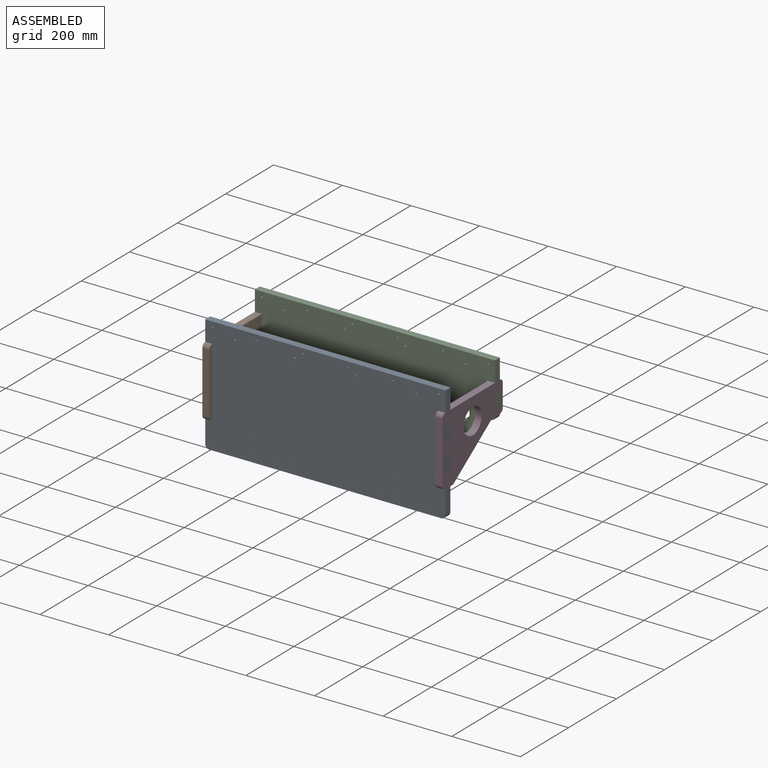
[diagram: assembled view]
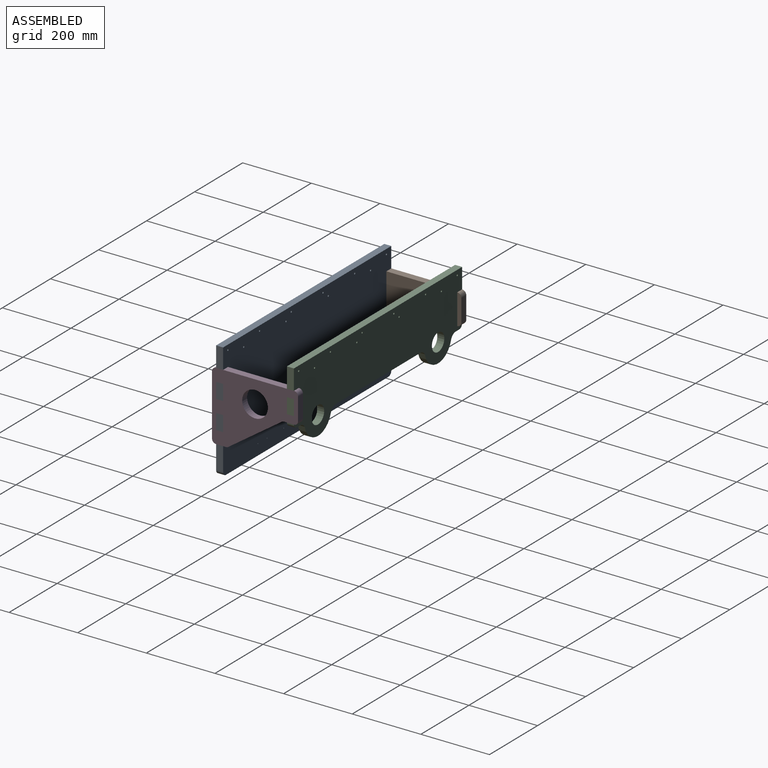
[diagram: assembled view, second angle]
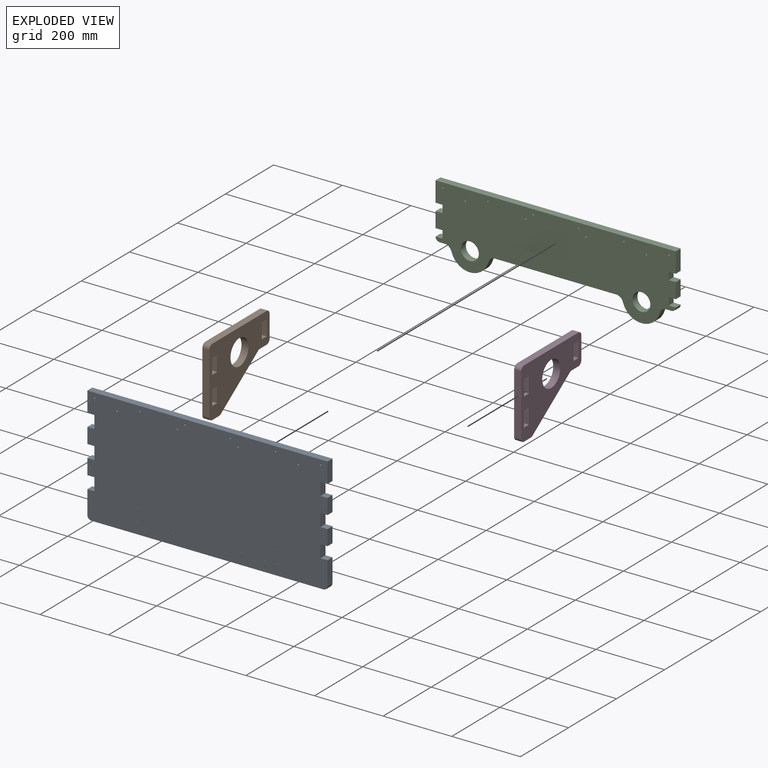
[diagram: exploded view]
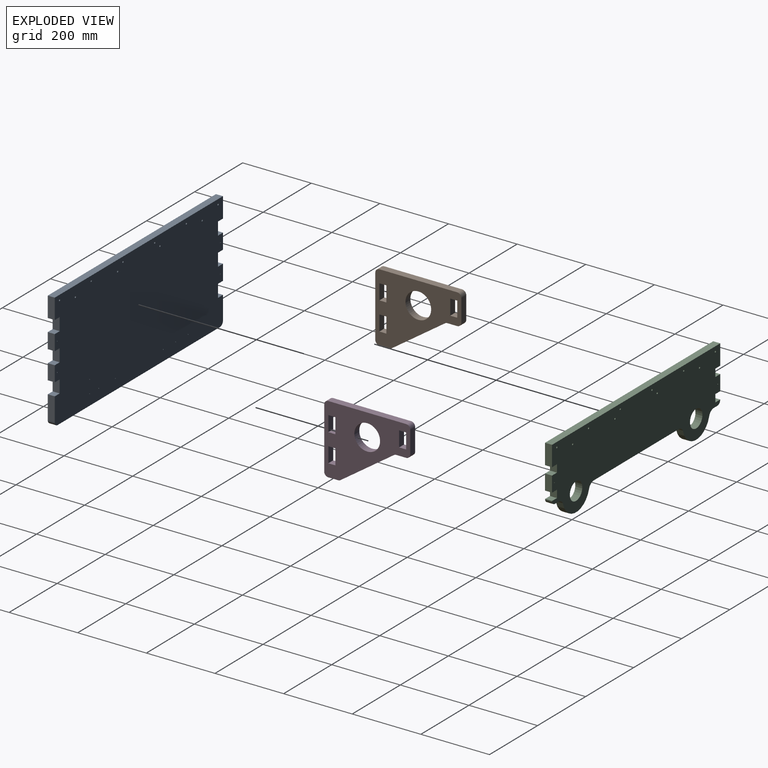
[diagram: exploded view, second angle]
ASSEMBLY  parts=4 mates=3
PART A: 54 faces, bbox 700x20.4x340 mm
  f0: plane 45x20.4mm, normal (1,0,0), area 918mm2, adj f6,f13,f16,f19
  f1: plane 59x20.4mm, normal (1,0,0), area 1203.6mm2, adj f6,f8,f13,f15
  f2: plane 45x20.4mm, normal (1,0,0), area 918mm2, adj f6,f13,f18,f22
  f3: plane 45x20.4mm, normal (-1,0,0), area 918mm2, adj f6,f13,f28,f31
  f4: plane 59x20.4mm, normal (-1,0,0), area 1203.6mm2, adj f6,f8,f13,f29
  f5: plane 45x20.4mm, normal (-1,0,0), area 918mm2, adj f6,f13,f25,f27
  f6: plane 700x340mm, normal (0,1,0), area 233171.5mm2, adj f0,f1,f2,f3,f4,f5,f7,f8
  f7: plane 68x20.4mm, normal (1,0,0), area 1387.2mm2, adj f6,f12,f13,f20
  f8: plane 700x20.4mm, normal (0,0,1), area 14280mm2, adj f1,f4,f6,f13
  f9: plane 68x20.4mm, normal (-1,0,0), area 1387.2mm2, adj f6,f10,f13,f24
  f10: cylinder r=12mm len=20.4mm, axis (0,1,0), area 384.5mm2, adj f6,f9,f11,f13
  f11: plane 676x20.4mm, normal (0,0,-1), area 13790.4mm2, adj f6,f10,f12,f13
  f12: cylinder r=12mm len=20.4mm, axis (0,1,0), area 384.5mm2, adj f6,f7,f11,f13
  f13: plane 700x340mm, normal (0,-1,0), area 233171.5mm2, adj f0,f1,f2,f3,f4,f5,f7,f8
  f14: plane 37x20.4mm, normal (1,0,0), area 754.8mm2, adj f6,f13,f15,f16
  f15: plane 20.4x20.4mm, normal (0,0,-1), area 416.2mm2, adj f1,f6,f13,f14
  f16: plane 20.4x20.4mm, normal (0,0,1), area 416.2mm2, adj f0,f6,f13,f14
  f17: plane 37x20.4mm, normal (1,0,0), area 754.8mm2, adj f6,f13,f18,f19
  f18: plane 20.4x20.4mm, normal (0,0,1), area 416.2mm2, adj f2,f6,f13,f17
  f19: plane 20.4x20.4mm, normal (0,0,-1), area 416.2mm2, adj f0,f6,f13,f17
  f20: plane 20.4x20.4mm, normal (0,0,1), area 416.2mm2, adj f6,f7,f13,f21
  f21: plane 37x20.4mm, normal (1,0,0), area 754.8mm2, adj f6,f13,f20,f22
  f22: plane 20.4x20.4mm, normal (0,0,-1), area 416.2mm2, adj f2,f6,f13,f21
  f23: plane 37x20.4mm, normal (-1,0,0), area 754.8mm2, adj f6,f13,f24,f25
  f24: plane 20.4x20.4mm, normal (0,0,1), area 416.2mm2, adj f6,f9,f13,f23
  f25: plane 20.4x20.4mm, normal (0,0,-1), area 416.2mm2, adj f5,f6,f13,f23
  f26: plane 37x20.4mm, normal (-1,0,0), area 754.8mm2, adj f6,f13,f27,f28
  f27: plane 20.4x20.4mm, normal (0,0,1), area 416.2mm2, adj f5,f6,f13,f26
  f28: plane 20.4x20.4mm, normal (0,0,-1), area 416.2mm2, adj f3,f6,f13,f26
  f29: plane 20.4x20.4mm, normal (0,0,-1), area 416.2mm2, adj f4,f6,f13,f30
  f30: plane 37x20.4mm, normal (-1,0,0), area 754.8mm2, adj f6,f13,f29,f31
  f31: plane 20.4x20.4mm, normal (0,0,1), area 416.2mm2, adj f3,f6,f13,f30
  f32: cylinder r=2.5mm len=20.4mm, axis (0,-1,0), area 320.4mm2, adj f6,f13
  f33: cylinder r=2.5mm len=20.4mm, axis (0,-1,0), area 320.4mm2, adj f6,f13
  f34: cylinder r=2.5mm len=20.4mm, axis (0,-1,0), area 320.4mm2, adj f6,f13
  f35: cylinder r=2.5mm len=20.4mm, axis (0,-1,0), area 320.4mm2, adj f6,f13
  f36: cylinder r=2.5mm len=20.4mm, axis (0,-1,0), area 320.4mm2, adj f6,f13
  f37: cylinder r=2.5mm len=20.4mm, axis (0,-1,0), area 320.4mm2, adj f6,f13
  f38: cylinder r=2.5mm len=20.4mm, axis (0,-1,0), area 320.4mm2, adj f6,f13
  f39: cylinder r=2.5mm len=20.4mm, axis (0,-1,0), area 320.4mm2, adj f6,f13
  f40: cylinder r=2.5mm len=20.4mm, axis (0,-1,0), area 320.4mm2, adj f6,f13
  f41: cylinder r=2.5mm len=20.4mm, axis (0,-1,0), area 320.4mm2, adj f6,f13
  f42: cylinder r=1.05mm len=20.4mm, axis (0,-1,0), area 134.6mm2, adj f6,f13
  f43: cylinder r=1.05mm len=20.4mm, axis (0,-1,0), area 134.6mm2, adj f6,f13
  f44: cylinder r=1.05mm len=20.4mm, axis (0,-1,0), area 134.6mm2, adj f6,f13
  f45: cylinder r=1.05mm len=20.4mm, axis (0,-1,0), area 134.6mm2, adj f6,f13
  f46: cylinder r=1.05mm len=20.4mm, axis (0,-1,0), area 134.6mm2, adj f6,f13
  f47: cylinder r=1.05mm len=20.4mm, axis (0,-1,0), area 134.6mm2, adj f6,f13
  f48: cylinder r=1.05mm len=20.4mm, axis (0,-1,0), area 134.6mm2, adj f6,f13
  f49: cylinder r=1.05mm len=20.4mm, axis (0,-1,0), area 134.6mm2, adj f6,f13
  f50: cylinder r=1.05mm len=20.4mm, axis (0,-1,0), area 134.6mm2, adj f6,f13
  f51: cylinder r=1.05mm len=20.4mm, axis (0,-1,0), area 134.6mm2, adj f6,f13
  f52: cylinder r=1.05mm len=20.4mm, axis (0,-1,0), area 134.6mm2, adj f6,f13
  f53: cylinder r=1.05mm len=20.4mm, axis (0,-1,0), area 134.6mm2, adj f6,f13
PART B: 27 faces, bbox 20.4x250.8x201 mm
  f0: plane 45x20.4mm, normal (0,1,0), area 918mm2, adj f1,f20,f25,f26
  f1: plane 20.4x20.4mm, normal (0,0,-1), area 416.2mm2, adj f0,f2,f25,f26
  f2: plane 45x20.4mm, normal (0,-1,0), area 918mm2, adj f1,f20,f25,f26
  f3: plane 20.4x20.4mm, normal (0,0,1), area 416.2mm2, adj f4,f21,f25,f26
  f4: plane 45x20.4mm, normal (0,1,0), area 918mm2, adj f3,f5,f25,f26
  f5: plane 20.4x20.4mm, normal (0,0,-1), area 416.2mm2, adj f4,f21,f25,f26
  f6: plane 226.8x20.4mm, normal (0,0,1), area 4626.7mm2, adj f7,f22,f25,f26
  f7: cylinder r=12mm len=20.4mm, axis (-1,0,0), area 384.5mm2, adj f6,f8,f25,f26
  f8: plane 177x20.4mm, normal (0,-1,0), area 3610.8mm2, adj f7,f9,f25,f26
  f9: cylinder r=12mm len=20.4mm, axis (-1,0,0), area 384.5mm2, adj f8,f10,f25,f26
  f10: plane 28.66x20.4mm, normal (0,0,-1), area 584.6mm2, adj f9,f11,f25,f26
  f11: cylinder r=12mm len=20.4mm, axis (-1,0,0), area 148.1mm2, adj f10,f12,f25,f26
  f12: plane 155.84x107.74mm, normal (0,0.57,-0.82), area 3864.9mm2, adj f11,f13,f25,f26
  f13: cylinder r=12mm len=20.4mm, axis (-1,0,0), area 148.1mm2, adj f12,f14,f25,f26
  f14: plane 28.66x20.4mm, normal (0,0,-1), area 584.6mm2, adj f13,f15,f25,f26
  f15: cylinder r=12mm len=20.4mm, axis (-1,0,0), area 384.5mm2, adj f14,f16,f25,f26
  f16: plane 65x20.4mm, normal (0,1,0), area 1326mm2, adj f15,f22,f25,f26
  f17: plane 45x20.4mm, normal (0,1,0), area 918mm2, adj f18,f23,f25,f26
  f18: plane 20.4x20.4mm, normal (0,0,-1), area 416.2mm2, adj f17,f19,f25,f26
  f19: plane 45x20.4mm, normal (0,-1,0), area 918mm2, adj f18,f23,f25,f26
  f20: plane 20.4x20.4mm, normal (0,0,1), area 416.2mm2, adj f0,f2,f25,f26
  f21: plane 45x20.4mm, normal (0,-1,0), area 918mm2, adj f3,f5,f25,f26
  f22: cylinder r=12mm len=20.4mm, axis (-1,0,0), area 384.5mm2, adj f6,f16,f25,f26
  f23: plane 20.4x20.4mm, normal (0,0,1), area 416.2mm2, adj f17,f19,f25,f26
  f24: cylinder r=37.44mm len=74.88mm, axis (-1,0,0), area 4799.1mm2, adj f25,f26
  f25: plane 250.8x201mm, normal (1,0,0), area 29084.3mm2, adj f0,f1,f2,f3,f4,f5,f6,f7
  f26: plane 250.8x201mm, normal (-1,0,0), area 29084.3mm2, adj f0,f1,f2,f3,f4,f5,f6,f7
PART C: 44 faces, bbox 700x20.4x216 mm
  f0: plane 45x20.4mm, normal (1,0,0), area 918mm2, adj f2,f19,f22,f25
  f1: plane 45x20.4mm, normal (-1,0,0), area 918mm2, adj f2,f19,f28,f31
  f2: plane 700x216mm, normal (0,-1,0), area 115763.4mm2, adj f0,f1,f3,f4,f5,f6,f7,f8
  f3: plane 700x20.4mm, normal (0,0,1), area 14280mm2, adj f2,f4,f17,f19
  f4: plane 59x20.4mm, normal (1,0,0), area 1203.6mm2, adj f2,f3,f19,f23
  f5: cylinder r=12mm len=20.4mm, axis (0,-1,0), area 384.5mm2, adj f2,f6,f19,f21
  f6: plane 20.4x14.68mm, normal (0,0,-1), area 299.4mm2, adj f2,f5,f7,f19
  f7: cylinder r=20mm len=20.4mm, axis (0,-1,0), area 532.2mm2, adj f2,f6,f8,f19
  f8: cylinder r=56mm len=108.05mm, axis (0,-1,0), area 2980.5mm2, adj f2,f7,f9,f19
  f9: cylinder r=20mm len=20.4mm, axis (0,-1,0), area 532.2mm2, adj f2,f8,f10,f19
  f10: plane 353.36x20.4mm, normal (0,0,-1), area 7208.5mm2, adj f2,f9,f11,f19
  f11: cylinder r=20mm len=20.4mm, axis (0,-1,0), area 532.2mm2, adj f2,f10,f12,f19
  f12: cylinder r=56mm len=108.05mm, axis (0,-1,0), area 2980.5mm2, adj f2,f11,f13,f19
  f13: cylinder r=20mm len=20.4mm, axis (0,-1,0), area 532.2mm2, adj f2,f12,f14,f19
  f14: plane 20.4x14.68mm, normal (0,0,-1), area 299.4mm2, adj f2,f13,f15,f19
  f15: cylinder r=12mm len=20.4mm, axis (0,-1,0), area 384.5mm2, adj f2,f14,f19,f29
  f16: cylinder r=26mm len=52mm, axis (0,-1,0), area 3332.6mm2, adj f2,f19
  f17: plane 59x20.4mm, normal (-1,0,0), area 1203.6mm2, adj f2,f3,f19,f27
  f18: cylinder r=26mm len=52mm, axis (0,-1,0), area 3332.6mm2, adj f2,f19
  f19: plane 700x216mm, normal (0,1,0), area 115763.4mm2, adj f0,f1,f3,f4,f5,f6,f7,f8
  f20: plane 22x20.4mm, normal (1,0,0), area 448.8mm2, adj f2,f19,f21,f22
  f21: plane 20.4x20.4mm, normal (0,0,1), area 416.2mm2, adj f2,f5,f19,f20
  f22: plane 20.4x20.4mm, normal (0,0,-1), area 416.2mm2, adj f0,f2,f19,f20
  f23: plane 20.4x20.4mm, normal (0,0,-1), area 416.2mm2, adj f2,f4,f19,f24
  f24: plane 22x20.4mm, normal (1,0,0), area 448.8mm2, adj f2,f19,f23,f25
  f25: plane 20.4x20.4mm, normal (0,0,1), area 416.2mm2, adj f0,f2,f19,f24
  f26: plane 22x20.4mm, normal (-1,0,0), area 448.8mm2, adj f2,f19,f27,f28
  f27: plane 20.4x20.4mm, normal (0,0,-1), area 416.2mm2, adj f2,f17,f19,f26
  f28: plane 20.4x20.4mm, normal (0,0,1), area 416.2mm2, adj f1,f2,f19,f26
  f29: plane 20.4x20.4mm, normal (0,0,1), area 416.2mm2, adj f2,f15,f19,f30
  f30: plane 22x20.4mm, normal (-1,0,0), area 448.8mm2, adj f2,f19,f29,f31
  f31: plane 20.4x20.4mm, normal (0,0,-1), area 416.2mm2, adj f1,f2,f19,f30
  f32: cylinder r=2.5mm len=20.4mm, axis (0,-1,0), area 320.4mm2, adj f2,f19
  f33: cylinder r=2.5mm len=20.4mm, axis (0,-1,0), area 320.4mm2, adj f2,f19
  f34: cylinder r=2.5mm len=20.4mm, axis (0,-1,0), area 320.4mm2, adj f2,f19
  f35: cylinder r=2.5mm len=20.4mm, axis (0,-1,0), area 320.4mm2, adj f2,f19
  f36: cylinder r=2.5mm len=20.4mm, axis (0,-1,0), area 320.4mm2, adj f2,f19
  f37: cylinder r=2.5mm len=20.4mm, axis (0,-1,0), area 320.4mm2, adj f2,f19
  f38: cylinder r=2.5mm len=20.4mm, axis (0,-1,0), area 320.4mm2, adj f2,f19
  f39: cylinder r=2.5mm len=20.4mm, axis (0,-1,0), area 320.4mm2, adj f2,f19
  f40: cylinder r=2.5mm len=20.4mm, axis (0,-1,0), area 320.4mm2, adj f2,f19
  f41: cylinder r=2.5mm len=20.4mm, axis (0,-1,0), area 320.4mm2, adj f2,f19
  f42: cylinder r=1.05mm len=20.4mm, axis (0,1,0), area 134.6mm2, adj f2,f19
  f43: cylinder r=1.05mm len=20.4mm, axis (0,1,0), area 134.6mm2, adj f2,f19
PART D: 27 faces, bbox 20.4x250.8x201 mm
  f0: plane 45x20.4mm, normal (0,1,0), area 918mm2, adj f1,f20,f25,f26
  f1: plane 20.4x20.4mm, normal (0,0,-1), area 416.2mm2, adj f0,f2,f25,f26
  f2: plane 45x20.4mm, normal (0,-1,0), area 918mm2, adj f1,f20,f25,f26
  f3: plane 20.4x20.4mm, normal (0,0,1), area 416.2mm2, adj f4,f21,f25,f26
  f4: plane 45x20.4mm, normal (0,1,0), area 918mm2, adj f3,f5,f25,f26
  f5: plane 20.4x20.4mm, normal (0,0,-1), area 416.2mm2, adj f4,f21,f25,f26
  f6: plane 226.8x20.4mm, normal (0,0,1), area 4626.7mm2, adj f7,f22,f25,f26
  f7: cylinder r=12mm len=20.4mm, axis (1,0,0), area 384.5mm2, adj f6,f8,f25,f26
  f8: plane 177x20.4mm, normal (0,-1,0), area 3610.8mm2, adj f7,f9,f25,f26
  f9: cylinder r=12mm len=20.4mm, axis (1,0,0), area 384.5mm2, adj f8,f10,f25,f26
  f10: plane 28.66x20.4mm, normal (0,0,-1), area 584.6mm2, adj f9,f11,f25,f26
  f11: cylinder r=12mm len=20.4mm, axis (1,0,0), area 148.1mm2, adj f10,f12,f25,f26
  f12: plane 155.84x107.74mm, normal (0,0.57,-0.82), area 3864.9mm2, adj f11,f13,f25,f26
  f13: cylinder r=12mm len=20.4mm, axis (1,0,0), area 148.1mm2, adj f12,f14,f25,f26
  f14: plane 28.66x20.4mm, normal (0,0,-1), area 584.6mm2, adj f13,f15,f25,f26
  f15: cylinder r=12mm len=20.4mm, axis (1,0,0), area 384.5mm2, adj f14,f16,f25,f26
  f16: plane 65x20.4mm, normal (0,1,0), area 1326mm2, adj f15,f22,f25,f26
  f17: plane 45x20.4mm, normal (0,1,0), area 918mm2, adj f18,f23,f25,f26
  f18: plane 20.4x20.4mm, normal (0,0,-1), area 416.2mm2, adj f17,f19,f25,f26
  f19: plane 45x20.4mm, normal (0,-1,0), area 918mm2, adj f18,f23,f25,f26
  f20: plane 20.4x20.4mm, normal (0,0,1), area 416.2mm2, adj f0,f2,f25,f26
  f21: plane 45x20.4mm, normal (0,-1,0), area 918mm2, adj f3,f5,f25,f26
  f22: cylinder r=12mm len=20.4mm, axis (1,0,0), area 384.5mm2, adj f6,f16,f25,f26
  f23: plane 20.4x20.4mm, normal (0,0,1), area 416.2mm2, adj f17,f19,f25,f26
  f24: cylinder r=37.44mm len=74.88mm, axis (1,0,0), area 4799.1mm2, adj f25,f26
  f25: plane 250.8x201mm, normal (-1,0,0), area 29084.3mm2, adj f0,f1,f2,f3,f4,f5,f6,f7
  f26: plane 250.8x201mm, normal (1,0,0), area 29084.3mm2, adj f0,f1,f2,f3,f4,f5,f6,f7
PLACE A t=(350,-113.4,1)mm
PLACE B t=(350,-113.4,1)mm
PLACE C t=(350,-113.4,1)mm
PLACE D t=(350,-113.4,1)mm
MATE fastened A.f50 <-> B.f17  axis (0,-1,0) through (10.2,-226.8,-118.5)mm
MATE fastened B.f0 <-> C.f42  axis (0,1,0) through (10.2,-20.4,-103.5)mm
MATE fastened D.f2 <-> C.f43  axis (0,-1,0) through (689.8,0,-103.5)mm
